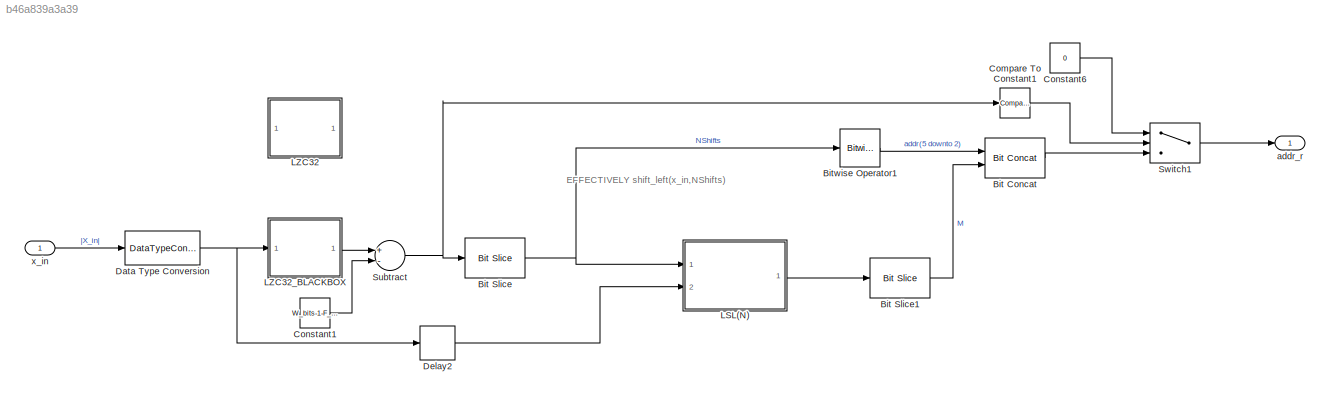
MODEL slx_b46a839a3a39
KIND model
CONFIG AbsTol = auto
CONFIG EnableMultiTasking = off
CONFIG FixedStep = auto
CONFIG InitFcn = clear;\nDIAGNOSTIC = 0;  %% flag to give more information as simulation proceeds such as comments & plots\nCALIB_DIAGNOSTIC =  0; %% flag to give more information about calibration of filterbank due to overlap between filters: Mar 2016\nPRESCRIPT = 1;  %% flag to plot requested versus achieved insertion gains (esp for 125-250 Hz region).\nipfiledigrms = -36; %% input file RMS in dB for 65 dB SPL equiv...<+3607ch>
CONFIG MaxStep = auto
CONFIG MinStep = auto
CONFIG RelTol = 1e-3
CONFIG SampleTimeConstraint = Unconstrained
CONFIG Solver = FixedStepDiscrete
CONFIG SolverName = FixedStepDiscrete
CONFIG StartTime = 0.0
CONFIG StopFcn = proc_sig = double(out.proc_sig.data(:));\n%alignedSigs = double(out.alignedSigs.data(:));\n[opwav, stop_ok] = savewavfile(opfiledigrms, ipfiledigrms, proc_sig, Fs, nbits, NStreams);\n\nload('SweepSimOutput.mat')\nX_out_Sweep_Sim(Volume,:) = proc_sig;\nsave('SweepSimOutput.mat', 'X_out_Sweep_Sim');
CONFIG StopTime = t_end
BLOCK [Reference] Bit Concat  REF=hdlsllib/Logic and Bit
Operations/Bit Concat
  Ports = [2, 1]
  SourceBlock = hdlsllib/Logic and Bit\nOperations/Bit Concat
  SourceProductBaseCode = SL
  SourceProductName = Simulink
  SourceType = Bit Concat
BLOCK [Reference] Bit Slice  REF=hdlsllib/Logic and Bit
Operations/Bit Slice
  Ports = [1, 1]
  SourceBlock = hdlsllib/Logic and Bit\nOperations/Bit Slice
  SourceProductBaseCode = SL
  SourceProductName = Simulink
  SourceType = Bit Slice
BLOCK [Reference] Bit Slice1  REF=hdlsllib/Logic and Bit
Operations/Bit Slice
  Ports = [1, 1]
  SourceBlock = hdlsllib/Logic and Bit\nOperations/Bit Slice
  SourceProductBaseCode = SL
  SourceProductName = Simulink
  SourceType = Bit Slice
BLOCK [Reference] Bitwise Operator1  REF=simulink/Logic and Bit
Operations/Bitwise
Operator
  Ports = [1, 1]
  SourceBlock = simulink/Logic and Bit\nOperations/Bitwise\nOperator
  SourceProductBaseCode = SL
  SourceProductName = Simulink
  SourceType = Bitwise Operator
BLOCK [Reference] Compare To Constant1  REF=simulink/Logic and Bit
Operations/Compare
To Constant
  Ports = [1, 1]
  SourceBlock = simulink/Logic and Bit\nOperations/Compare\nTo Constant
  SourceProductBaseCode = SL
  SourceProductName = Simulink
  SourceType = Compare To Constant
BLOCK [Constant] Constant1
  OutDataTypeStr = fixdt(0,6,0)
  SampleTime = -1
  Value = W_bits-1-F_bits
BLOCK [Constant] Constant6
  OutDataTypeStr = fixdt(0,9,0)
  SampleTime = -1
  Value = 0
BLOCK [DataTypeConversion] Data Type Conversion
  OutDataTypeStr = fixdt(0,W_bits,F_bits)
  RndMeth = Floor
  SaturateOnIntegerOverflow = off
BLOCK [Delay] Delay2
  DelayLength = 1
  InputPortMap = u0
  Ports = [1, 1]
  SampleTime = Ts_system
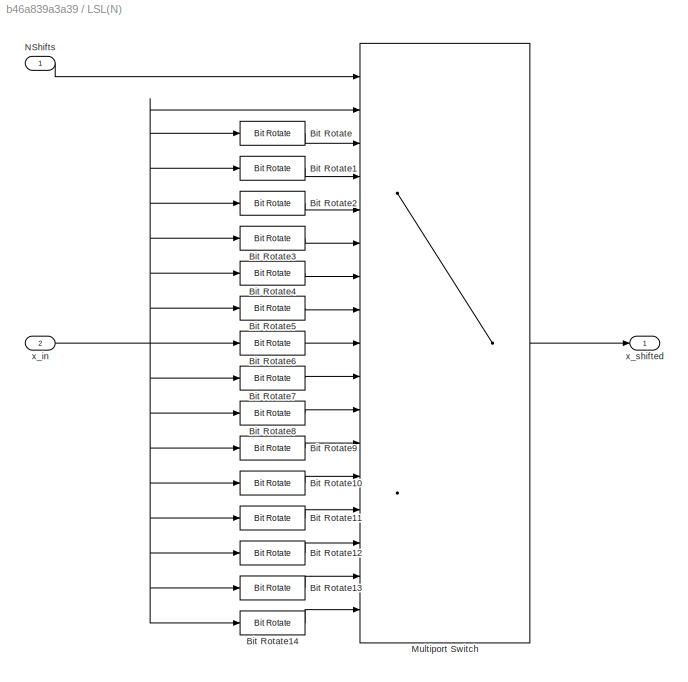
BLOCK [SubSystem] LSL(N)
  Ports = [2, 1]
  RequestExecContextInheritance = off
BLOCK [Reference] LSL(N)/Bit Rotate  REF=hdlsllib/Logic and Bit
Operations/Bit Rotate
  Ports = [1, 1]
  SourceBlock = hdlsllib/Logic and Bit\nOperations/Bit Rotate
  SourceProductBaseCode = SL
  SourceProductName = Simulink
  SourceType = Bit Rotate
BLOCK [Reference] LSL(N)/Bit Rotate1  REF=hdlsllib/Logic and Bit
Operations/Bit Rotate
  Ports = [1, 1]
  SourceBlock = hdlsllib/Logic and Bit\nOperations/Bit Rotate
  SourceProductBaseCode = SL
  SourceProductName = Simulink
  SourceType = Bit Rotate
BLOCK [Reference] LSL(N)/Bit Rotate10  REF=hdlsllib/Logic and Bit
Operations/Bit Rotate
  Ports = [1, 1]
  SourceBlock = hdlsllib/Logic and Bit\nOperations/Bit Rotate
  SourceProductBaseCode = SL
  SourceProductName = Simulink
  SourceType = Bit Rotate
BLOCK [Reference] LSL(N)/Bit Rotate11  REF=hdlsllib/Logic and Bit
Operations/Bit Rotate
  Ports = [1, 1]
  SourceBlock = hdlsllib/Logic and Bit\nOperations/Bit Rotate
  SourceProductBaseCode = SL
  SourceProductName = Simulink
  SourceType = Bit Rotate
BLOCK [Reference] LSL(N)/Bit Rotate12  REF=hdlsllib/Logic and Bit
Operations/Bit Rotate
  Ports = [1, 1]
  SourceBlock = hdlsllib/Logic and Bit\nOperations/Bit Rotate
  SourceProductBaseCode = SL
  SourceProductName = Simulink
  SourceType = Bit Rotate
BLOCK [Reference] LSL(N)/Bit Rotate13  REF=hdlsllib/Logic and Bit
Operations/Bit Rotate
  Ports = [1, 1]
  SourceBlock = hdlsllib/Logic and Bit\nOperations/Bit Rotate
  SourceProductBaseCode = SL
  SourceProductName = Simulink
  SourceType = Bit Rotate
BLOCK [Reference] LSL(N)/Bit Rotate14  REF=hdlsllib/Logic and Bit
Operations/Bit Rotate
  Ports = [1, 1]
  SourceBlock = hdlsllib/Logic and Bit\nOperations/Bit Rotate
  SourceProductBaseCode = SL
  SourceProductName = Simulink
  SourceType = Bit Rotate
BLOCK [Reference] LSL(N)/Bit Rotate2  REF=hdlsllib/Logic and Bit
Operations/Bit Rotate
  Ports = [1, 1]
  SourceBlock = hdlsllib/Logic and Bit\nOperations/Bit Rotate
  SourceProductBaseCode = SL
  SourceProductName = Simulink
  SourceType = Bit Rotate
BLOCK [Reference] LSL(N)/Bit Rotate3  REF=hdlsllib/Logic and Bit
Operations/Bit Rotate
  Ports = [1, 1]
  SourceBlock = hdlsllib/Logic and Bit\nOperations/Bit Rotate
  SourceProductBaseCode = SL
  SourceProductName = Simulink
  SourceType = Bit Rotate
BLOCK [Reference] LSL(N)/Bit Rotate4  REF=hdlsllib/Logic and Bit
Operations/Bit Rotate
  Ports = [1, 1]
  SourceBlock = hdlsllib/Logic and Bit\nOperations/Bit Rotate
  SourceProductBaseCode = SL
  SourceProductName = Simulink
  SourceType = Bit Rotate
BLOCK [Reference] LSL(N)/Bit Rotate5  REF=hdlsllib/Logic and Bit
Operations/Bit Rotate
  Ports = [1, 1]
  SourceBlock = hdlsllib/Logic and Bit\nOperations/Bit Rotate
  SourceProductBaseCode = SL
  SourceProductName = Simulink
  SourceType = Bit Rotate
BLOCK [Reference] LSL(N)/Bit Rotate6  REF=hdlsllib/Logic and Bit
Operations/Bit Rotate
  Ports = [1, 1]
  SourceBlock = hdlsllib/Logic and Bit\nOperations/Bit Rotate
  SourceProductBaseCode = SL
  SourceProductName = Simulink
  SourceType = Bit Rotate
BLOCK [Reference] LSL(N)/Bit Rotate7  REF=hdlsllib/Logic and Bit
Operations/Bit Rotate
  Ports = [1, 1]
  SourceBlock = hdlsllib/Logic and Bit\nOperations/Bit Rotate
  SourceProductBaseCode = SL
  SourceProductName = Simulink
  SourceType = Bit Rotate
BLOCK [Reference] LSL(N)/Bit Rotate8  REF=hdlsllib/Logic and Bit
Operations/Bit Rotate
  Ports = [1, 1]
  SourceBlock = hdlsllib/Logic and Bit\nOperations/Bit Rotate
  SourceProductBaseCode = SL
  SourceProductName = Simulink
  SourceType = Bit Rotate
BLOCK [Reference] LSL(N)/Bit Rotate9  REF=hdlsllib/Logic and Bit
Operations/Bit Rotate
  Ports = [1, 1]
  SourceBlock = hdlsllib/Logic and Bit\nOperations/Bit Rotate
  SourceProductBaseCode = SL
  SourceProductName = Simulink
  SourceType = Bit Rotate
BLOCK [MultiPortSwitch] LSL(N)/Multiport Switch
  DataPortOrder = Zero-based contiguous
  DiagnosticForDefault = Warning
  InputSameDT = off
  Inputs = 16
  Ports = [17, 1]
  SaturateOnIntegerOverflow = off
  zeroidx = on
BLOCK [Inport] LSL(N)/NShifts
  IconDisplay = Port number
BLOCK [Inport] LSL(N)/x_in
  IconDisplay = Port number
  Port = 2
BLOCK [Outport] LSL(N)/x_shifted
  IconDisplay = Port number
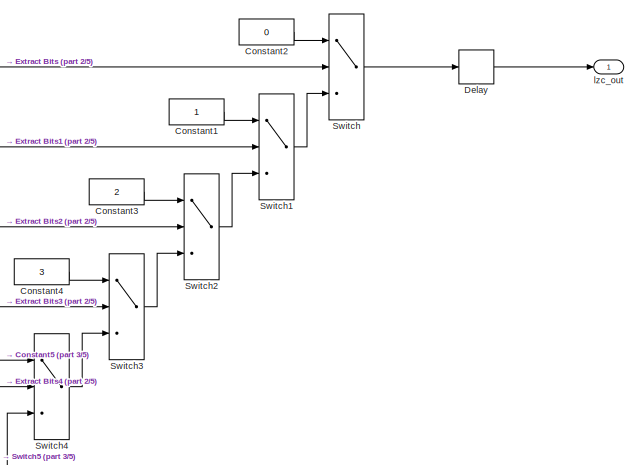
[diagram: LZC32 - part 1/5, top right region]
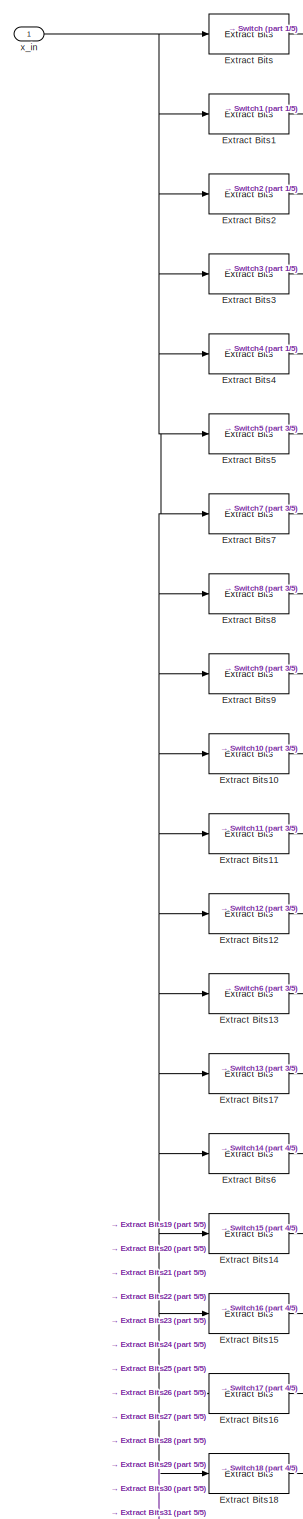
[diagram: LZC32 - part 2/5, top left region]
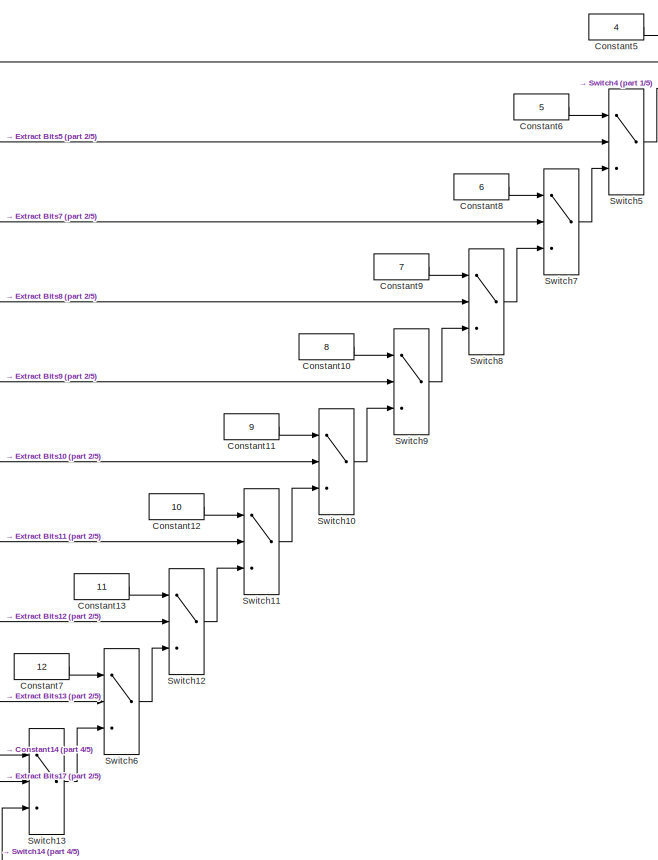
[diagram: LZC32 - part 3/5, top right region]
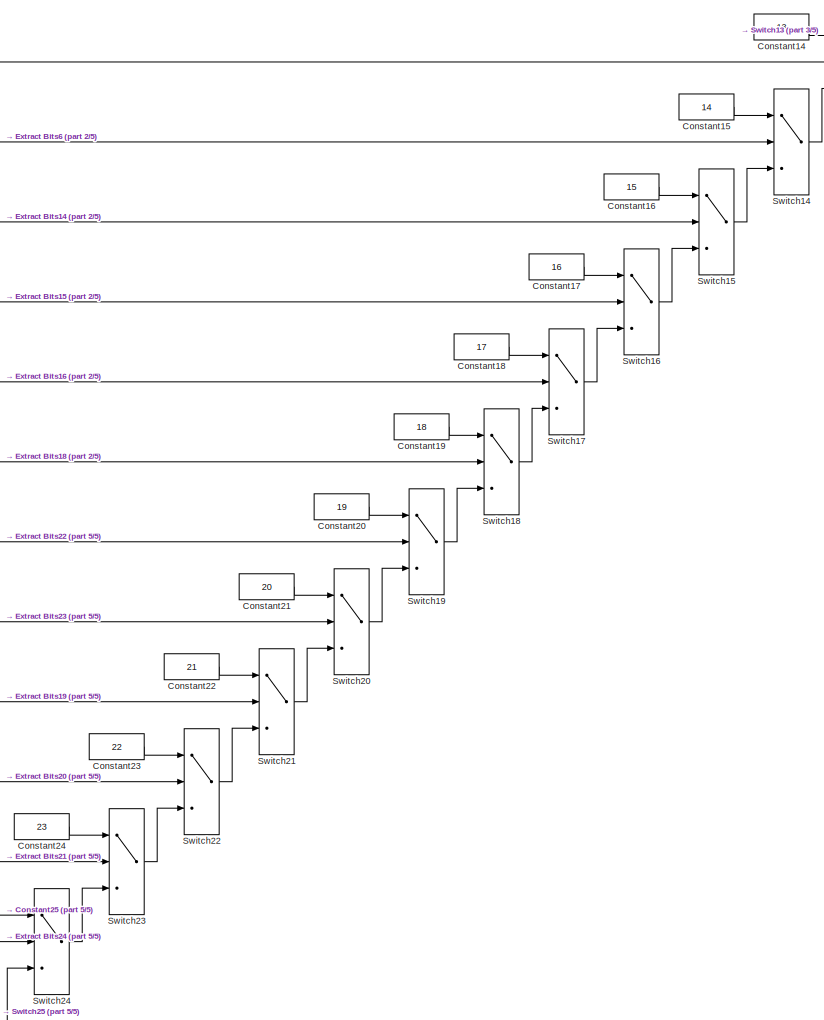
[diagram: LZC32 - part 4/5, central region]
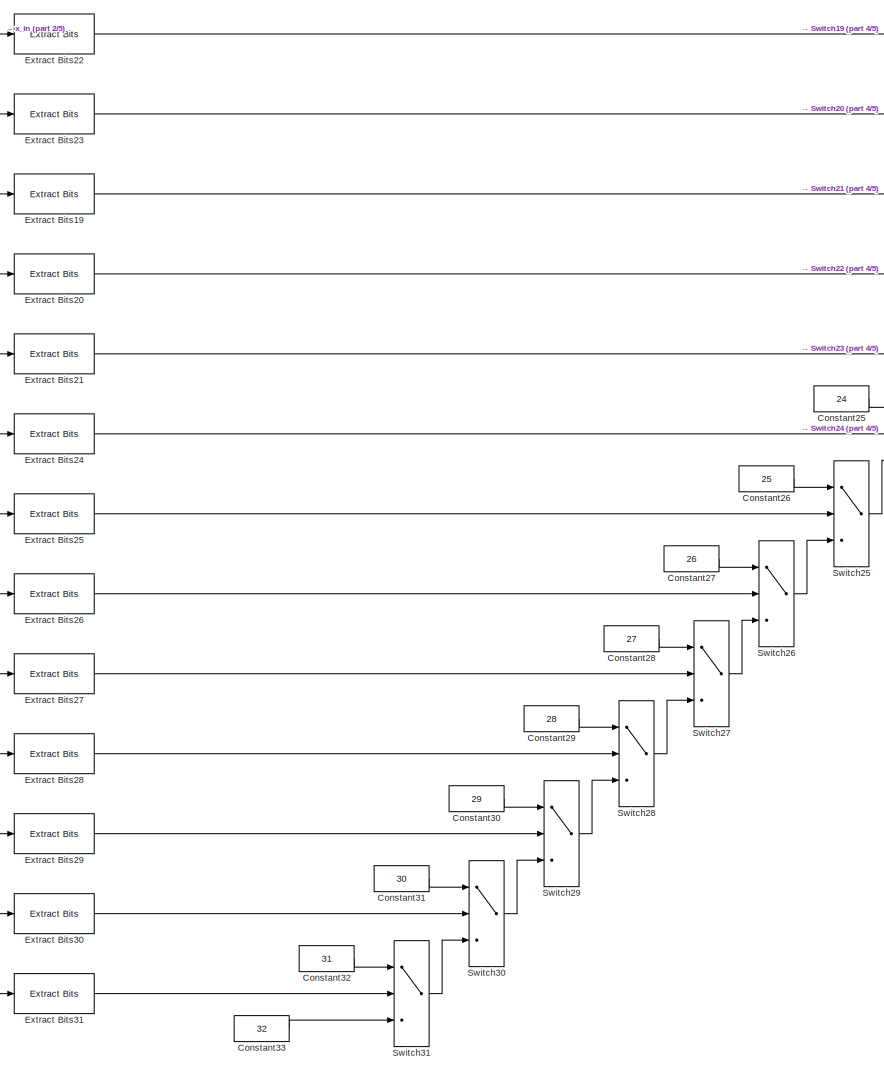
[diagram: LZC32 - part 5/5, bottom left region]
BLOCK [SubSystem] LZC32
  Commented = on
  Ports = [1, 1]
  RequestExecContextInheritance = off
  TreatAsAtomicUnit = on
BLOCK [Constant] LZC32/Constant1
  OutDataTypeStr = fixdt(0,6,0)
  SampleTime = Ts_system
BLOCK [Constant] LZC32/Constant10
  OutDataTypeStr = fixdt(0,6,0)
  SampleTime = Ts_system
  Value = 8
BLOCK [Constant] LZC32/Constant11
  OutDataTypeStr = fixdt(0,6,0)
  SampleTime = Ts_system
  Value = 9
BLOCK [Constant] LZC32/Constant12
  OutDataTypeStr = fixdt(0,6,0)
  SampleTime = Ts_system
  Value = 10
BLOCK [Constant] LZC32/Constant13
  OutDataTypeStr = fixdt(0,6,0)
  SampleTime = Ts_system
  Value = 11
BLOCK [Constant] LZC32/Constant14
  OutDataTypeStr = fixdt(0,6,0)
  SampleTime = Ts_system
  Value = 13
BLOCK [Constant] LZC32/Constant15
  OutDataTypeStr = fixdt(0,6,0)
  SampleTime = Ts_system
  Value = 14
BLOCK [Constant] LZC32/Constant16
  OutDataTypeStr = fixdt(0,6,0)
  SampleTime = Ts_system
  Value = 15
BLOCK [Constant] LZC32/Constant17
  OutDataTypeStr = fixdt(0,6,0)
  SampleTime = Ts_system
  Value = 16
BLOCK [Constant] LZC32/Constant18
  OutDataTypeStr = fixdt(0,6,0)
  SampleTime = Ts_system
  Value = 17
BLOCK [Constant] LZC32/Constant19
  OutDataTypeStr = fixdt(0,6,0)
  SampleTime = Ts_system
  Value = 18
BLOCK [Constant] LZC32/Constant2
  OutDataTypeStr = fixdt(0,6,0)
  SampleTime = Ts_system
  Value = 0
BLOCK [Constant] LZC32/Constant20
  OutDataTypeStr = fixdt(0,6,0)
  SampleTime = Ts_system
  Value = 19
BLOCK [Constant] LZC32/Constant21
  OutDataTypeStr = fixdt(0,6,0)
  SampleTime = Ts_system
  Value = 20
BLOCK [Constant] LZC32/Constant22
  OutDataTypeStr = fixdt(0,6,0)
  SampleTime = Ts_system
  Value = 21
BLOCK [Constant] LZC32/Constant23
  OutDataTypeStr = fixdt(0,6,0)
  SampleTime = Ts_system
  Value = 22
BLOCK [Constant] LZC32/Constant24
  OutDataTypeStr = fixdt(0,6,0)
  SampleTime = Ts_system
  Value = 23
BLOCK [Constant] LZC32/Constant25
  OutDataTypeStr = fixdt(0,6,0)
  SampleTime = Ts_system
  Value = 24
BLOCK [Constant] LZC32/Constant26
  OutDataTypeStr = fixdt(0,6,0)
  SampleTime = Ts_system
  Value = 25
BLOCK [Constant] LZC32/Constant27
  OutDataTypeStr = fixdt(0,6,0)
  SampleTime = Ts_system
  Value = 26
BLOCK [Constant] LZC32/Constant28
  OutDataTypeStr = fixdt(0,6,0)
  SampleTime = Ts_system
  Value = 27
BLOCK [Constant] LZC32/Constant29
  OutDataTypeStr = fixdt(0,6,0)
  SampleTime = Ts_system
  Value = 28
BLOCK [Constant] LZC32/Constant3
  OutDataTypeStr = fixdt(0,6,0)
  SampleTime = Ts_system
  Value = 2
BLOCK [Constant] LZC32/Constant30
  OutDataTypeStr = fixdt(0,6,0)
  SampleTime = Ts_system
  Value = 29
BLOCK [Constant] LZC32/Constant31
  OutDataTypeStr = fixdt(0,6,0)
  SampleTime = Ts_system
  Value = 30
BLOCK [Constant] LZC32/Constant32
  OutDataTypeStr = fixdt(0,6,0)
  SampleTime = Ts_system
  Value = 31
BLOCK [Constant] LZC32/Constant33
  OutDataTypeStr = fixdt(0,6,0)
  SampleTime = Ts_system
  Value = 32
BLOCK [Constant] LZC32/Constant4
  OutDataTypeStr = fixdt(0,6,0)
  SampleTime = Ts_system
  Value = 3
BLOCK [Constant] LZC32/Constant5
  OutDataTypeStr = fixdt(0,6,0)
  SampleTime = Ts_system
  Value = 4
BLOCK [Constant] LZC32/Constant6
  OutDataTypeStr = fixdt(0,6,0)
  SampleTime = Ts_system
  Value = 5
BLOCK [Constant] LZC32/Constant7
  OutDataTypeStr = fixdt(0,6,0)
  SampleTime = Ts_system
  Value = 12
BLOCK [Constant] LZC32/Constant8
  OutDataTypeStr = fixdt(0,6,0)
  SampleTime = Ts_system
  Value = 6
BLOCK [Constant] LZC32/Constant9
  OutDataTypeStr = fixdt(0,6,0)
  SampleTime = Ts_system
  Value = 7
BLOCK [Delay] LZC32/Delay
  DelayLength = 1
  InitialCondition = 3
  InputPortMap = u0
  Ports = [1, 1]
  SampleTime = Ts_system
BLOCK [Reference] LZC32/Extract Bits  REF=simulink/Logic and Bit
Operations/Extract Bits
  Ports = [1, 1]
  SourceBlock = simulink/Logic and Bit\nOperations/Extract Bits
  SourceProductBaseCode = SL
  SourceProductName = Simulink
  SourceType = Extract Bits
BLOCK [Reference] LZC32/Extract Bits1  REF=simulink/Logic and Bit
Operations/Extract Bits
  Ports = [1, 1]
  SourceBlock = simulink/Logic and Bit\nOperations/Extract Bits
  SourceProductBaseCode = SL
  SourceProductName = Simulink
  SourceType = Extract Bits
BLOCK [Reference] LZC32/Extract Bits10  REF=simulink/Logic and Bit
Operations/Extract Bits
  Ports = [1, 1]
  SourceBlock = simulink/Logic and Bit\nOperations/Extract Bits
  SourceProductBaseCode = SL
  SourceProductName = Simulink
  SourceType = Extract Bits
BLOCK [Reference] LZC32/Extract Bits11  REF=simulink/Logic and Bit
Operations/Extract Bits
  Ports = [1, 1]
  SourceBlock = simulink/Logic and Bit\nOperations/Extract Bits
  SourceProductBaseCode = SL
  SourceProductName = Simulink
  SourceType = Extract Bits
BLOCK [Reference] LZC32/Extract Bits12  REF=simulink/Logic and Bit
Operations/Extract Bits
  Ports = [1, 1]
  SourceBlock = simulink/Logic and Bit\nOperations/Extract Bits
  SourceProductBaseCode = SL
  SourceProductName = Simulink
  SourceType = Extract Bits
BLOCK [Reference] LZC32/Extract Bits13  REF=simulink/Logic and Bit
Operations/Extract Bits
  Ports = [1, 1]
  SourceBlock = simulink/Logic and Bit\nOperations/Extract Bits
  SourceProductBaseCode = SL
  SourceProductName = Simulink
  SourceType = Extract Bits
BLOCK [Reference] LZC32/Extract Bits14  REF=simulink/Logic and Bit
Operations/Extract Bits
  Ports = [1, 1]
  SourceBlock = simulink/Logic and Bit\nOperations/Extract Bits
  SourceProductBaseCode = SL
  SourceProductName = Simulink
  SourceType = Extract Bits
BLOCK [Reference] LZC32/Extract Bits15  REF=simulink/Logic and Bit
Operations/Extract Bits
  Ports = [1, 1]
  SourceBlock = simulink/Logic and Bit\nOperations/Extract Bits
  SourceProductBaseCode = SL
  SourceProductName = Simulink
  SourceType = Extract Bits
BLOCK [Reference] LZC32/Extract Bits16  REF=simulink/Logic and Bit
Operations/Extract Bits
  Ports = [1, 1]
  SourceBlock = simulink/Logic and Bit\nOperations/Extract Bits
  SourceProductBaseCode = SL
  SourceProductName = Simulink
  SourceType = Extract Bits
BLOCK [Reference] LZC32/Extract Bits17  REF=simulink/Logic and Bit
Operations/Extract Bits
  Ports = [1, 1]
  SourceBlock = simulink/Logic and Bit\nOperations/Extract Bits
  SourceProductBaseCode = SL
  SourceProductName = Simulink
  SourceType = Extract Bits
BLOCK [Reference] LZC32/Extract Bits18  REF=simulink/Logic and Bit
Operations/Extract Bits
  Ports = [1, 1]
  SourceBlock = simulink/Logic and Bit\nOperations/Extract Bits
  SourceProductBaseCode = SL
  SourceProductName = Simulink
  SourceType = Extract Bits
BLOCK [Reference] LZC32/Extract Bits19  REF=simulink/Logic and Bit
Operations/Extract Bits
  Ports = [1, 1]
  SourceBlock = simulink/Logic and Bit\nOperations/Extract Bits
  SourceProductBaseCode = SL
  SourceProductName = Simulink
  SourceType = Extract Bits
BLOCK [Reference] LZC32/Extract Bits2  REF=simulink/Logic and Bit
Operations/Extract Bits
  Ports = [1, 1]
  SourceBlock = simulink/Logic and Bit\nOperations/Extract Bits
  SourceProductBaseCode = SL
  SourceProductName = Simulink
  SourceType = Extract Bits
BLOCK [Reference] LZC32/Extract Bits20  REF=simulink/Logic and Bit
Operations/Extract Bits
  Ports = [1, 1]
  SourceBlock = simulink/Logic and Bit\nOperations/Extract Bits
  SourceProductBaseCode = SL
  SourceProductName = Simulink
  SourceType = Extract Bits
BLOCK [Reference] LZC32/Extract Bits21  REF=simulink/Logic and Bit
Operations/Extract Bits
  Ports = [1, 1]
  SourceBlock = simulink/Logic and Bit\nOperations/Extract Bits
  SourceProductBaseCode = SL
  SourceProductName = Simulink
  SourceType = Extract Bits
BLOCK [Reference] LZC32/Extract Bits22  REF=simulink/Logic and Bit
Operations/Extract Bits
  Ports = [1, 1]
  SourceBlock = simulink/Logic and Bit\nOperations/Extract Bits
  SourceProductBaseCode = SL
  SourceProductName = Simulink
  SourceType = Extract Bits
BLOCK [Reference] LZC32/Extract Bits23  REF=simulink/Logic and Bit
Operations/Extract Bits
  Ports = [1, 1]
  SourceBlock = simulink/Logic and Bit\nOperations/Extract Bits
  SourceProductBaseCode = SL
  SourceProductName = Simulink
  SourceType = Extract Bits
BLOCK [Reference] LZC32/Extract Bits24  REF=simulink/Logic and Bit
Operations/Extract Bits
  Ports = [1, 1]
  SourceBlock = simulink/Logic and Bit\nOperations/Extract Bits
  SourceProductBaseCode = SL
  SourceProductName = Simulink
  SourceType = Extract Bits
BLOCK [Reference] LZC32/Extract Bits25  REF=simulink/Logic and Bit
Operations/Extract Bits
  Ports = [1, 1]
  SourceBlock = simulink/Logic and Bit\nOperations/Extract Bits
  SourceProductBaseCode = SL
  SourceProductName = Simulink
  SourceType = Extract Bits
BLOCK [Reference] LZC32/Extract Bits26  REF=simulink/Logic and Bit
Operations/Extract Bits
  Ports = [1, 1]
  SourceBlock = simulink/Logic and Bit\nOperations/Extract Bits
  SourceProductBaseCode = SL
  SourceProductName = Simulink
  SourceType = Extract Bits
BLOCK [Reference] LZC32/Extract Bits27  REF=simulink/Logic and Bit
Operations/Extract Bits
  Ports = [1, 1]
  SourceBlock = simulink/Logic and Bit\nOperations/Extract Bits
  SourceProductBaseCode = SL
  SourceProductName = Simulink
  SourceType = Extract Bits
BLOCK [Reference] LZC32/Extract Bits28  REF=simulink/Logic and Bit
Operations/Extract Bits
  Ports = [1, 1]
  SourceBlock = simulink/Logic and Bit\nOperations/Extract Bits
  SourceProductBaseCode = SL
  SourceProductName = Simulink
  SourceType = Extract Bits
BLOCK [Reference] LZC32/Extract Bits29  REF=simulink/Logic and Bit
Operations/Extract Bits
  Ports = [1, 1]
  SourceBlock = simulink/Logic and Bit\nOperations/Extract Bits
  SourceProductBaseCode = SL
  SourceProductName = Simulink
  SourceType = Extract Bits
BLOCK [Reference] LZC32/Extract Bits3  REF=simulink/Logic and Bit
Operations/Extract Bits
  Ports = [1, 1]
  SourceBlock = simulink/Logic and Bit\nOperations/Extract Bits
  SourceProductBaseCode = SL
  SourceProductName = Simulink
  SourceType = Extract Bits
BLOCK [Reference] LZC32/Extract Bits30  REF=simulink/Logic and Bit
Operations/Extract Bits
  Ports = [1, 1]
  SourceBlock = simulink/Logic and Bit\nOperations/Extract Bits
  SourceProductBaseCode = SL
  SourceProductName = Simulink
  SourceType = Extract Bits
BLOCK [Reference] LZC32/Extract Bits31  REF=simulink/Logic and Bit
Operations/Extract Bits
  Ports = [1, 1]
  SourceBlock = simulink/Logic and Bit\nOperations/Extract Bits
  SourceProductBaseCode = SL
  SourceProductName = Simulink
  SourceType = Extract Bits
BLOCK [Reference] LZC32/Extract Bits4  REF=simulink/Logic and Bit
Operations/Extract Bits
  Ports = [1, 1]
  SourceBlock = simulink/Logic and Bit\nOperations/Extract Bits
  SourceProductBaseCode = SL
  SourceProductName = Simulink
  SourceType = Extract Bits
BLOCK [Reference] LZC32/Extract Bits5  REF=simulink/Logic and Bit
Operations/Extract Bits
  Ports = [1, 1]
  SourceBlock = simulink/Logic and Bit\nOperations/Extract Bits
  SourceProductBaseCode = SL
  SourceProductName = Simulink
  SourceType = Extract Bits
BLOCK [Reference] LZC32/Extract Bits6  REF=simulink/Logic and Bit
Operations/Extract Bits
  Ports = [1, 1]
  SourceBlock = simulink/Logic and Bit\nOperations/Extract Bits
  SourceProductBaseCode = SL
  SourceProductName = Simulink
  SourceType = Extract Bits
BLOCK [Reference] LZC32/Extract Bits7  REF=simulink/Logic and Bit
Operations/Extract Bits
  Ports = [1, 1]
  SourceBlock = simulink/Logic and Bit\nOperations/Extract Bits
  SourceProductBaseCode = SL
  SourceProductName = Simulink
  SourceType = Extract Bits
BLOCK [Reference] LZC32/Extract Bits8  REF=simulink/Logic and Bit
Operations/Extract Bits
  Ports = [1, 1]
  SourceBlock = simulink/Logic and Bit\nOperations/Extract Bits
  SourceProductBaseCode = SL
  SourceProductName = Simulink
  SourceType = Extract Bits
BLOCK [Reference] LZC32/Extract Bits9  REF=simulink/Logic and Bit
Operations/Extract Bits
  Ports = [1, 1]
  SourceBlock = simulink/Logic and Bit\nOperations/Extract Bits
  SourceProductBaseCode = SL
  SourceProductName = Simulink
  SourceType = Extract Bits
BLOCK [Switch] LZC32/Switch
  Criteria = u2 ~= 0
  InputSameDT = off
  SaturateOnIntegerOverflow = off
BLOCK [Switch] LZC32/Switch1
  Criteria = u2 ~= 0
  InputSameDT = off
  SaturateOnIntegerOverflow = off
BLOCK [Switch] LZC32/Switch10
  Criteria = u2 ~= 0
  InputSameDT = off
  SaturateOnIntegerOverflow = off
BLOCK [Switch] LZC32/Switch11
  Criteria = u2 ~= 0
  InputSameDT = off
  SaturateOnIntegerOverflow = off
BLOCK [Switch] LZC32/Switch12
  Criteria = u2 ~= 0
  InputSameDT = off
  SaturateOnIntegerOverflow = off
BLOCK [Switch] LZC32/Switch13
  Criteria = u2 ~= 0
  InputSameDT = off
  SaturateOnIntegerOverflow = off
BLOCK [Switch] LZC32/Switch14
  Criteria = u2 ~= 0
  InputSameDT = off
  SaturateOnIntegerOverflow = off
BLOCK [Switch] LZC32/Switch15
  Criteria = u2 ~= 0
  InputSameDT = off
  SaturateOnIntegerOverflow = off
BLOCK [Switch] LZC32/Switch16
  Criteria = u2 ~= 0
  InputSameDT = off
  SaturateOnIntegerOverflow = off
BLOCK [Switch] LZC32/Switch17
  Criteria = u2 ~= 0
  InputSameDT = off
  SaturateOnIntegerOverflow = off
BLOCK [Switch] LZC32/Switch18
  Criteria = u2 ~= 0
  InputSameDT = off
  SaturateOnIntegerOverflow = off
BLOCK [Switch] LZC32/Switch19
  Criteria = u2 ~= 0
  InputSameDT = off
  SaturateOnIntegerOverflow = off
BLOCK [Switch] LZC32/Switch2
  Criteria = u2 ~= 0
  InputSameDT = off
  SaturateOnIntegerOverflow = off
BLOCK [Switch] LZC32/Switch20
  Criteria = u2 ~= 0
  InputSameDT = off
  SaturateOnIntegerOverflow = off
BLOCK [Switch] LZC32/Switch21
  Criteria = u2 ~= 0
  InputSameDT = off
  SaturateOnIntegerOverflow = off
BLOCK [Switch] LZC32/Switch22
  Criteria = u2 ~= 0
  InputSameDT = off
  SaturateOnIntegerOverflow = off
BLOCK [Switch] LZC32/Switch23
  Criteria = u2 ~= 0
  InputSameDT = off
  SaturateOnIntegerOverflow = off
BLOCK [Switch] LZC32/Switch24
  Criteria = u2 ~= 0
  InputSameDT = off
  SaturateOnIntegerOverflow = off
BLOCK [Switch] LZC32/Switch25
  Criteria = u2 ~= 0
  InputSameDT = off
  SaturateOnIntegerOverflow = off
BLOCK [Switch] LZC32/Switch26
  Criteria = u2 ~= 0
  InputSameDT = off
  SaturateOnIntegerOverflow = off
BLOCK [Switch] LZC32/Switch27
  Criteria = u2 ~= 0
  InputSameDT = off
  SaturateOnIntegerOverflow = off
BLOCK [Switch] LZC32/Switch28
  Criteria = u2 ~= 0
  InputSameDT = off
  SaturateOnIntegerOverflow = off
BLOCK [Switch] LZC32/Switch29
  Criteria = u2 ~= 0
  InputSameDT = off
  SaturateOnIntegerOverflow = off
BLOCK [Switch] LZC32/Switch3
  Criteria = u2 ~= 0
  InputSameDT = off
  SaturateOnIntegerOverflow = off
BLOCK [Switch] LZC32/Switch30
  Criteria = u2 ~= 0
  InputSameDT = off
  SaturateOnIntegerOverflow = off
BLOCK [Switch] LZC32/Switch31
  Criteria = u2 ~= 0
  InputSameDT = off
  SaturateOnIntegerOverflow = off
BLOCK [Switch] LZC32/Switch4
  Criteria = u2 ~= 0
  InputSameDT = off
  SaturateOnIntegerOverflow = off
BLOCK [Switch] LZC32/Switch5
  Criteria = u2 ~= 0
  InputSameDT = off
  SaturateOnIntegerOverflow = off
BLOCK [Switch] LZC32/Switch6
  Criteria = u2 ~= 0
  InputSameDT = off
  SaturateOnIntegerOverflow = off
BLOCK [Switch] LZC32/Switch7
  Criteria = u2 ~= 0
  InputSameDT = off
  SaturateOnIntegerOverflow = off
BLOCK [Switch] LZC32/Switch8
  Criteria = u2 ~= 0
  InputSameDT = off
  SaturateOnIntegerOverflow = off
BLOCK [Switch] LZC32/Switch9
  Criteria = u2 ~= 0
  InputSameDT = off
  SaturateOnIntegerOverflow = off
BLOCK [Outport] LZC32/lzc_out
  IconDisplay = Port number
BLOCK [Inport] LZC32/x_in
  IconDisplay = Port number
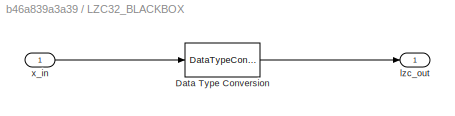
BLOCK [SubSystem] LZC32_BLACKBOX
  Ports = [1, 1]
  RequestExecContextInheritance = off
  TreatAsAtomicUnit = on
BLOCK [DataTypeConversion] LZC32_BLACKBOX/Data Type Conversion
  OutDataTypeStr = fixdt(0,6,0)
  RndMeth = Floor
  SaturateOnIntegerOverflow = off
BLOCK [Outport] LZC32_BLACKBOX/lzc_out
  IconDisplay = Port number
BLOCK [Inport] LZC32_BLACKBOX/x_in
  IconDisplay = Port number
BLOCK [Sum] Subtract
  AccumDataTypeStr = Inherit: Same as first input
  InputSameDT = off
  Inputs = +-
  Ports = [2, 1]
  SaturateOnIntegerOverflow = off
BLOCK [Switch] Switch1
  Criteria = u2 ~= 0
  InputSameDT = off
  SaturateOnIntegerOverflow = off
BLOCK [Outport] addr_r
  IconDisplay = Port number
  OutDataTypeStr = fixdt(0,9,0)
  PortDimensions = 1
  SampleTime = [2.0833333333333333e-05,0]
  SamplingMode = Sample based
  SignalType = real
BLOCK [Inport] x_in
  IconDisplay = Port number
  OutDataTypeStr = fixdt(1,32,28)
  PortDimensions = 1
  SampleTime = [2.0833333333333333e-05,0]
  SamplingMode = Sample based
  SignalType = real
ANNOTATION (root): EFFECTIVELY shift_left(x_in,NShifts)
LINE Bit Concat:1 -> Switch1:3
LINE Bit Slice1:1 -> Bit Concat:2
NET Bit Slice:1 -> Bitwise Operator1:1, LSL(N):1
LINE Bitwise Operator1:1 -> Bit Concat:1
LINE Compare To Constant1:1 -> Switch1:2
LINE Constant1:1 -> Subtract:2
LINE Constant6:1 -> Switch1:1
NET Data Type Conversion:1 -> Delay2:1, LZC32_BLACKBOX:1
LINE Delay2:1 -> LSL(N):2
LINE LSL(N)/Bit Rotate10:1 -> LSL(N)/Multiport Switch:13
LINE LSL(N)/Bit Rotate11:1 -> LSL(N)/Multiport Switch:14
LINE LSL(N)/Bit Rotate12:1 -> LSL(N)/Multiport Switch:15
LINE LSL(N)/Bit Rotate13:1 -> LSL(N)/Multiport Switch:16
LINE LSL(N)/Bit Rotate14:1 -> LSL(N)/Multiport Switch:17
LINE LSL(N)/Bit Rotate1:1 -> LSL(N)/Multiport Switch:4
LINE LSL(N)/Bit Rotate2:1 -> LSL(N)/Multiport Switch:5
LINE LSL(N)/Bit Rotate3:1 -> LSL(N)/Multiport Switch:6
LINE LSL(N)/Bit Rotate4:1 -> LSL(N)/Multiport Switch:7
LINE LSL(N)/Bit Rotate5:1 -> LSL(N)/Multiport Switch:8
LINE LSL(N)/Bit Rotate6:1 -> LSL(N)/Multiport Switch:9
LINE LSL(N)/Bit Rotate7:1 -> LSL(N)/Multiport Switch:10
LINE LSL(N)/Bit Rotate8:1 -> LSL(N)/Multiport Switch:11
LINE LSL(N)/Bit Rotate9:1 -> LSL(N)/Multiport Switch:12
LINE LSL(N)/Bit Rotate:1 -> LSL(N)/Multiport Switch:3
LINE LSL(N)/Multiport Switch:1 -> LSL(N)/x_shifted:1
LINE LSL(N)/NShifts:1 -> LSL(N)/Multiport Switch:1
NET LSL(N)/x_in:1 -> LSL(N)/Bit Rotate10:1, LSL(N)/Bit Rotate11:1, LSL(N)/Bit Rotate12:1, LSL(N)/Bit Rotate13:1, LSL(N)/Bit Rotate14:1, LSL(N)/Bit Rotate1:1, LSL(N)/Bit Rotate2:1, LSL(N)/Bit Rotate3:1, LSL(N)/Bit Rotate4:1, LSL(N)/Bit Rotate5:1, LSL(N)/Bit Rotate6:1, LSL(N)/Bit Rotate7:1, LSL(N)/Bit Rotate8:1, LSL(N)/Bit Rotate9:1, LSL(N)/Bit Rotate:1, LSL(N)/Multiport Switch:2
LINE LSL(N):1 -> Bit Slice1:1
LINE LZC32/Constant10:1 -> LZC32/Switch9:1
LINE LZC32/Constant11:1 -> LZC32/Switch10:1
LINE LZC32/Constant12:1 -> LZC32/Switch11:1
LINE LZC32/Constant13:1 -> LZC32/Switch12:1
LINE LZC32/Constant14:1 -> LZC32/Switch13:1
LINE LZC32/Constant15:1 -> LZC32/Switch14:1
LINE LZC32/Constant16:1 -> LZC32/Switch15:1
LINE LZC32/Constant17:1 -> LZC32/Switch16:1
LINE LZC32/Constant18:1 -> LZC32/Switch17:1
LINE LZC32/Constant19:1 -> LZC32/Switch18:1
LINE LZC32/Constant1:1 -> LZC32/Switch1:1
LINE LZC32/Constant20:1 -> LZC32/Switch19:1
LINE LZC32/Constant21:1 -> LZC32/Switch20:1
LINE LZC32/Constant22:1 -> LZC32/Switch21:1
LINE LZC32/Constant23:1 -> LZC32/Switch22:1
LINE LZC32/Constant24:1 -> LZC32/Switch23:1
LINE LZC32/Constant25:1 -> LZC32/Switch24:1
LINE LZC32/Constant26:1 -> LZC32/Switch25:1
LINE LZC32/Constant27:1 -> LZC32/Switch26:1
LINE LZC32/Constant28:1 -> LZC32/Switch27:1
LINE LZC32/Constant29:1 -> LZC32/Switch28:1
LINE LZC32/Constant2:1 -> LZC32/Switch:1
LINE LZC32/Constant30:1 -> LZC32/Switch29:1
LINE LZC32/Constant31:1 -> LZC32/Switch30:1
LINE LZC32/Constant32:1 -> LZC32/Switch31:1
LINE LZC32/Constant33:1 -> LZC32/Switch31:3
LINE LZC32/Constant3:1 -> LZC32/Switch2:1
LINE LZC32/Constant4:1 -> LZC32/Switch3:1
LINE LZC32/Constant5:1 -> LZC32/Switch4:1
LINE LZC32/Constant6:1 -> LZC32/Switch5:1
LINE LZC32/Constant7:1 -> LZC32/Switch6:1
LINE LZC32/Constant8:1 -> LZC32/Switch7:1
LINE LZC32/Constant9:1 -> LZC32/Switch8:1
LINE LZC32/Delay:1 -> LZC32/lzc_out:1
LINE LZC32/Extract Bits10:1 -> LZC32/Switch10:2
LINE LZC32/Extract Bits11:1 -> LZC32/Switch11:2
LINE LZC32/Extract Bits12:1 -> LZC32/Switch12:2
LINE LZC32/Extract Bits13:1 -> LZC32/Switch6:2
LINE LZC32/Extract Bits14:1 -> LZC32/Switch15:2
LINE LZC32/Extract Bits15:1 -> LZC32/Switch16:2
LINE LZC32/Extract Bits16:1 -> LZC32/Switch17:2
LINE LZC32/Extract Bits17:1 -> LZC32/Switch13:2
LINE LZC32/Extract Bits18:1 -> LZC32/Switch18:2
LINE LZC32/Extract Bits19:1 -> LZC32/Switch21:2
LINE LZC32/Extract Bits1:1 -> LZC32/Switch1:2
LINE LZC32/Extract Bits20:1 -> LZC32/Switch22:2
LINE LZC32/Extract Bits21:1 -> LZC32/Switch23:2
LINE LZC32/Extract Bits22:1 -> LZC32/Switch19:2
LINE LZC32/Extract Bits23:1 -> LZC32/Switch20:2
LINE LZC32/Extract Bits24:1 -> LZC32/Switch24:2
LINE LZC32/Extract Bits25:1 -> LZC32/Switch25:2
LINE LZC32/Extract Bits26:1 -> LZC32/Switch26:2
LINE LZC32/Extract Bits27:1 -> LZC32/Switch27:2
LINE LZC32/Extract Bits28:1 -> LZC32/Switch28:2
LINE LZC32/Extract Bits29:1 -> LZC32/Switch29:2
LINE LZC32/Extract Bits2:1 -> LZC32/Switch2:2
LINE LZC32/Extract Bits30:1 -> LZC32/Switch30:2
LINE LZC32/Extract Bits31:1 -> LZC32/Switch31:2
LINE LZC32/Extract Bits3:1 -> LZC32/Switch3:2
LINE LZC32/Extract Bits4:1 -> LZC32/Switch4:2
LINE LZC32/Extract Bits5:1 -> LZC32/Switch5:2
LINE LZC32/Extract Bits6:1 -> LZC32/Switch14:2
LINE LZC32/Extract Bits7:1 -> LZC32/Switch7:2
LINE LZC32/Extract Bits8:1 -> LZC32/Switch8:2
LINE LZC32/Extract Bits9:1 -> LZC32/Switch9:2
LINE LZC32/Extract Bits:1 -> LZC32/Switch:2
LINE LZC32/Switch10:1 -> LZC32/Switch9:3
LINE LZC32/Switch11:1 -> LZC32/Switch10:3
LINE LZC32/Switch12:1 -> LZC32/Switch11:3
LINE LZC32/Switch13:1 -> LZC32/Switch6:3
LINE LZC32/Switch14:1 -> LZC32/Switch13:3
LINE LZC32/Switch15:1 -> LZC32/Switch14:3
LINE LZC32/Switch16:1 -> LZC32/Switch15:3
LINE LZC32/Switch17:1 -> LZC32/Switch16:3
LINE LZC32/Switch18:1 -> LZC32/Switch17:3
LINE LZC32/Switch19:1 -> LZC32/Switch18:3
LINE LZC32/Switch1:1 -> LZC32/Switch:3
LINE LZC32/Switch20:1 -> LZC32/Switch19:3
LINE LZC32/Switch21:1 -> LZC32/Switch20:3
LINE LZC32/Switch22:1 -> LZC32/Switch21:3
LINE LZC32/Switch23:1 -> LZC32/Switch22:3
LINE LZC32/Switch24:1 -> LZC32/Switch23:3
LINE LZC32/Switch25:1 -> LZC32/Switch24:3
LINE LZC32/Switch26:1 -> LZC32/Switch25:3
LINE LZC32/Switch27:1 -> LZC32/Switch26:3
LINE LZC32/Switch28:1 -> LZC32/Switch27:3
LINE LZC32/Switch29:1 -> LZC32/Switch28:3
LINE LZC32/Switch2:1 -> LZC32/Switch1:3
LINE LZC32/Switch30:1 -> LZC32/Switch29:3
LINE LZC32/Switch31:1 -> LZC32/Switch30:3
LINE LZC32/Switch3:1 -> LZC32/Switch2:3
LINE LZC32/Switch4:1 -> LZC32/Switch3:3
LINE LZC32/Switch5:1 -> LZC32/Switch4:3
LINE LZC32/Switch6:1 -> LZC32/Switch12:3
LINE LZC32/Switch7:1 -> LZC32/Switch5:3
LINE LZC32/Switch8:1 -> LZC32/Switch7:3
LINE LZC32/Switch9:1 -> LZC32/Switch8:3
LINE LZC32/Switch:1 -> LZC32/Delay:1
NET LZC32/x_in:1 -> LZC32/Extract Bits10:1, LZC32/Extract Bits11:1, LZC32/Extract Bits12:1, LZC32/Extract Bits13:1, LZC32/Extract Bits14:1, LZC32/Extract Bits15:1, LZC32/Extract Bits16:1, LZC32/Extract Bits17:1, LZC32/Extract Bits18:1, LZC32/Extract Bits19:1, LZC32/Extract Bits1:1, LZC32/Extract Bits20:1, LZC32/Extract Bits21:1, LZC32/Extract Bits22:1, LZC32/Extract Bits23:1, LZC32/Extract Bits24:1, LZC32/Extract Bits25:1, LZC32/Extract Bits26:1, LZC32/Extract Bits27:1, LZC32/Extract Bits28:1, LZC32/Extract Bits29:1, LZC32/Extract Bits2:1, LZC32/Extract Bits30:1, LZC32/Extract Bits31:1, LZC32/Extract Bits3:1, LZC32/Extract Bits4:1, LZC32/Extract Bits5:1, LZC32/Extract Bits6:1, LZC32/Extract Bits7:1, LZC32/Extract Bits8:1, LZC32/Extract Bits9:1, LZC32/Extract Bits:1
LINE LZC32_BLACKBOX/Data Type Conversion:1 -> LZC32_BLACKBOX/lzc_out:1
LINE LZC32_BLACKBOX/x_in:1 -> LZC32_BLACKBOX/Data Type Conversion:1
LINE LZC32_BLACKBOX:1 -> Subtract:1
NET Subtract:1 -> Bit Slice:1, Compare To Constant1:1
LINE Switch1:1 -> addr_r:1
LINE x_in:1 -> Data Type Conversion:1
note: NET lines group one-source signal fan-out (src -> all destinations, sorted); 1:1 wires keep LINE
